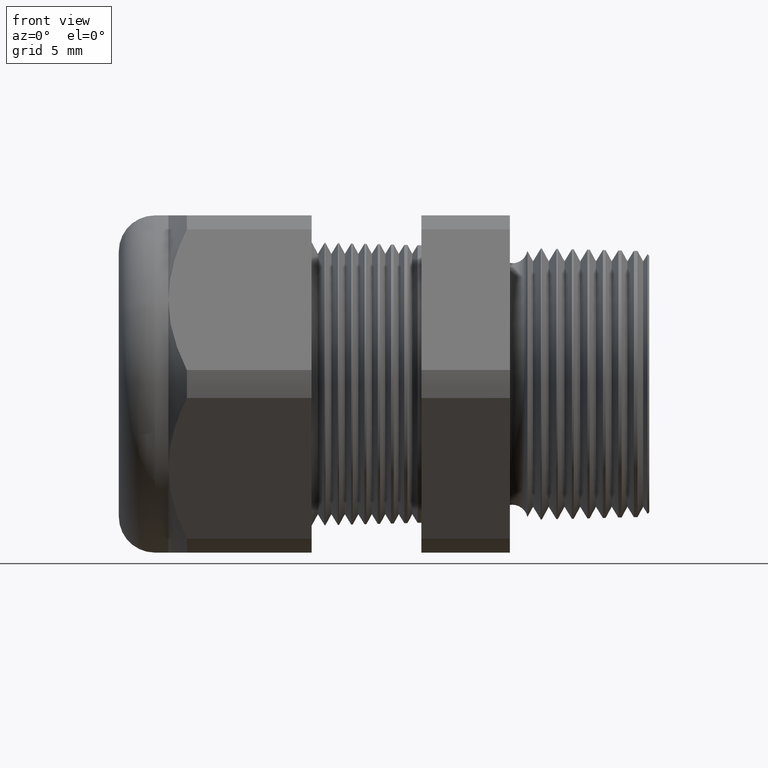
[diagram: clean part render]
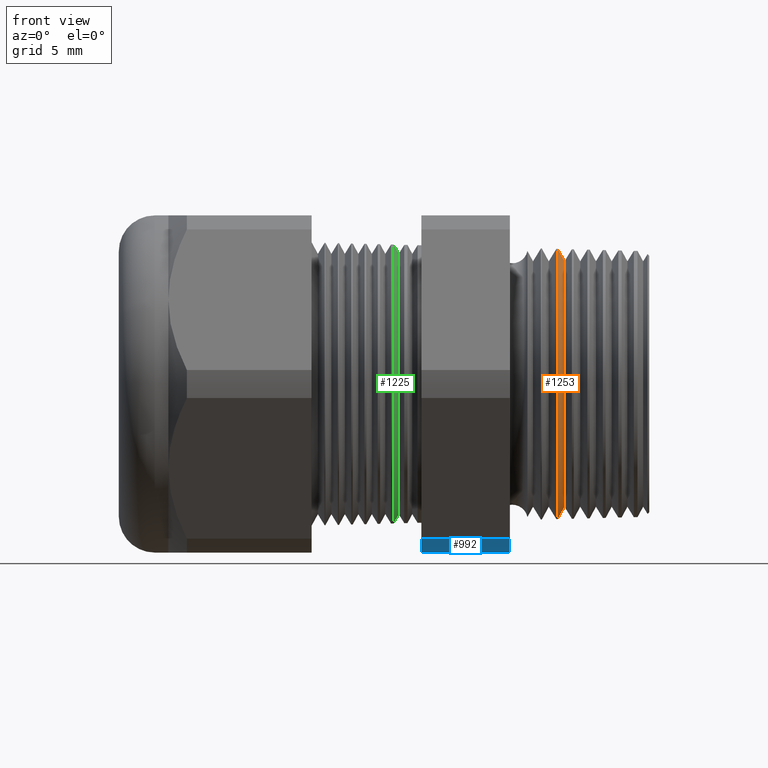
[diagram: same view with three faces highlighted in distinct colors, each labeled with its STEP entity id]
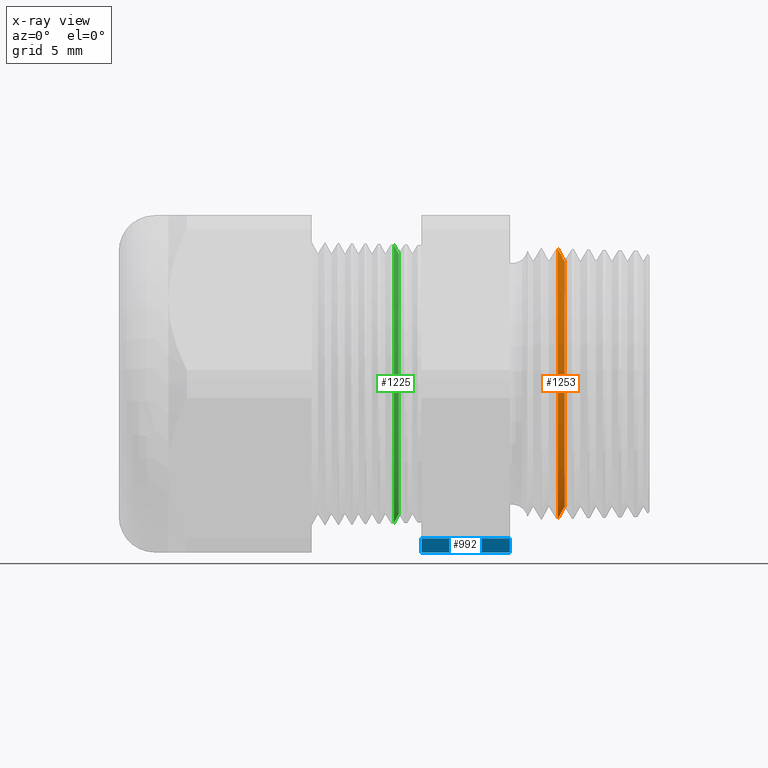
[diagram: x-ray of the same camera — body ghosted, the three highlighted faces saturated]
A machine part, front view with three faces highlighted in distinct colors.
The next image is the same camera in x-ray (body ghosted, the three faces saturated) — at least one of them is partly hidden behind the body in this view.
Their STEP definitions:

[orange] entity #1253 — the highlighted conical surface has half-angle 61.5 deg.
#361 = EDGE_CURVE ( 'NONE', #1365, #1362, #2184, .T. ) ;
#1232 = ORIENTED_EDGE ( 'NONE', *, *, #1233, .F. ) ;
#1233 = EDGE_CURVE ( 'NONE', #1310, #1375, #3644, .T. ) ;
#1234 = ORIENTED_EDGE ( 'NONE', *, *, #1367, .T. ) ;
#1235 = ORIENTED_EDGE ( 'NONE', *, *, #361, .T. ) ;
#1253 = ADVANCED_FACE ( 'NONE', ( #3752 ), #3747, .T. ) ;
#1254 = EDGE_LOOP ( 'NONE', ( #1255, #1232, #1234, #1235 ) ) ;
#1255 = ORIENTED_EDGE ( 'NONE', *, *, #1361, .F. ) ;
#1310 = VERTEX_POINT ( 'NONE', #3861 ) ;
#1361 = EDGE_CURVE ( 'NONE', #1375, #1362, #3914, .T. ) ;
#1362 = VERTEX_POINT ( 'NONE', #3905 ) ;
#1365 = VERTEX_POINT ( 'NONE', #3899 ) ;
#1367 = EDGE_CURVE ( 'NONE', #1310, #1365, #3898, .T. ) ;
#1375 = VERTEX_POINT ( 'NONE', #3942 ) ;
#2180 = DIRECTION ( 'NONE',  ( 0.0000000000000000000, 0.0000000000000000000, 1.000000000000000000 ) ) ;
#2181 = DIRECTION ( 'NONE',  ( 1.000000000000000000, 0.0000000000000000000, 0.0000000000000000000 ) ) ;
#2182 = CARTESIAN_POINT ( 'NONE',  ( -0.2034856000580643200, 0.0000000000000000000, 0.0000000000000000000 ) ) ;
#2183 = AXIS2_PLACEMENT_3D ( 'NONE', #2182, #2181, #2180 ) ;
#2184 = CIRCLE ( 'NONE', #2183, 0.3006663360672237100 ) ;
#2889 = DIRECTION ( 'NONE',  ( 1.000000000000000000, 0.0000000000000000000, 0.0000000000000000000 ) ) ;
#3127 = DIRECTION ( 'NONE',  ( 0.0000000000000000000, 0.0000000000000000000, -1.000000000000000000 ) ) ;
#3643 = AXIS2_PLACEMENT_3D ( 'NONE', #3648, #2889, #3127 ) ;
#3644 = CIRCLE ( 'NONE', #3643, 0.2730123959962614800 ) ;
#3648 = CARTESIAN_POINT ( 'NONE',  ( -0.1884707356790751900, 0.0000000000000000000, 0.0000000000000000000 ) ) ;
#3742 = DIRECTION ( 'NONE',  ( 0.0000000000000000000, 0.0000000000000000000, 1.000000000000000000 ) ) ;
#3743 = DIRECTION ( 'NONE',  ( -1.000000000000000000, 0.0000000000000000000, 0.0000000000000000000 ) ) ;
#3744 = CARTESIAN_POINT ( 'NONE',  ( -0.2049999999999999600, 0.0000000000000000000, 0.0000000000000000000 ) ) ;
#3745 = AXIS2_PLACEMENT_3D ( 'NONE', #3744, #3743, #3742 ) ;
#3747 = CONICAL_SURFACE ( 'NONE', #3745, 0.3034555137900915000, 1.073377489976501000 ) ;
#3752 = FACE_OUTER_BOUND ( 'NONE', #1254, .T. ) ;
#3861 = CARTESIAN_POINT ( 'NONE',  ( -0.1884707356790751900, 0.0000000000000000000, 0.2730123959962614800 ) ) ;
#3898 = LINE ( 'NONE', #3959, #3958 ) ;
#3899 = CARTESIAN_POINT ( 'NONE',  ( -0.2034856000580643200, 0.0000000000000000000, 0.3006663360672237100 ) ) ;
#3905 = CARTESIAN_POINT ( 'NONE',  ( -0.2034856000580643200, 3.682580211089470000E-017, -0.3006663360672237100 ) ) ;
#3906 = DIRECTION ( 'NONE',  ( -0.4771587602596187900, 1.076240564057388000E-016, -0.8788171126619597200 ) ) ;
#3907 = VECTOR ( 'NONE', #3906, 39.37007874015748900 ) ;
#3908 = CARTESIAN_POINT ( 'NONE',  ( -0.2049999999999999600, 3.716258236466510600E-017, -0.3034555137900915000 ) ) ;
#3914 = LINE ( 'NONE', #3908, #3907 ) ;
#3942 = CARTESIAN_POINT ( 'NONE',  ( -0.1884707356790751900, 3.512769114802295800E-017, -0.2730123959962614800 ) ) ;
#3957 = DIRECTION ( 'NONE',  ( -0.4771587602596187900, 0.0000000000000000000, 0.8788171126619597200 ) ) ;
#3958 = VECTOR ( 'NONE', #3957, 39.37007874015748900 ) ;
#3959 = CARTESIAN_POINT ( 'NONE',  ( -0.2049999999999999600, 0.0000000000000000000, 0.3034555137900915000 ) ) ;

[blue] entity #992 — the highlighted cylindrical surface (partial cylindrical patch) has radius 10.5727 mm, axis along (-1, 0, 0).
#847 = VERTEX_POINT ( 'NONE', #3114 ) ;
#849 = EDGE_CURVE ( 'NONE', #847, #850, #3113, .T. ) ;
#850 = VERTEX_POINT ( 'NONE', #3108 ) ;
#918 = EDGE_CURVE ( 'NONE', #847, #919, #3239, .T. ) ;
#919 = VERTEX_POINT ( 'NONE', #3235 ) ;
#920 = ORIENTED_EDGE ( 'NONE', *, *, #921, .F. ) ;
#921 = EDGE_CURVE ( 'NONE', #937, #919, #3234, .T. ) ;
#936 = EDGE_CURVE ( 'NONE', #850, #937, #3268, .T. ) ;
#937 = VERTEX_POINT ( 'NONE', #3264 ) ;
#992 = ADVANCED_FACE ( 'NONE', ( #3368 ), #3367, .T. ) ;
#993 = EDGE_LOOP ( 'NONE', ( #994, #995, #996, #920 ) ) ;
#994 = ORIENTED_EDGE ( 'NONE', *, *, #936, .F. ) ;
#995 = ORIENTED_EDGE ( 'NONE', *, *, #849, .F. ) ;
#996 = ORIENTED_EDGE ( 'NONE', *, *, #918, .T. ) ;
#3108 = CARTESIAN_POINT ( 'NONE',  ( -0.3100000000000000000, -0.1806628420566883900, -0.3750000000000001100 ) ) ;
#3109 = DIRECTION ( 'NONE',  ( 0.0000000000000000000, 0.0000000000000000000, -1.000000000000000000 ) ) ;
#3110 = DIRECTION ( 'NONE',  ( 1.000000000000000000, 0.0000000000000000000, 0.0000000000000000000 ) ) ;
#3111 = CARTESIAN_POINT ( 'NONE',  ( -0.3100000000000000000, 0.0000000000000000000, 0.0000000000000000000 ) ) ;
#3112 = AXIS2_PLACEMENT_3D ( 'NONE', #3111, #3110, #3109 ) ;
#3113 = CIRCLE ( 'NONE', #3112, 0.4162500000000000100 ) ;
#3114 = CARTESIAN_POINT ( 'NONE',  ( -0.3100000000000000000, -0.2344281053908202100, -0.3439586107409880500 ) ) ;
#3230 = DIRECTION ( 'NONE',  ( 0.0000000000000000000, 0.0000000000000000000, 1.000000000000000000 ) ) ;
#3231 = DIRECTION ( 'NONE',  ( -1.000000000000000000, 0.0000000000000000000, 0.0000000000000000000 ) ) ;
#3232 = CARTESIAN_POINT ( 'NONE',  ( -0.5068503937007874400, 0.0000000000000000000, 0.0000000000000000000 ) ) ;
#3233 = AXIS2_PLACEMENT_3D ( 'NONE', #3232, #3231, #3230 ) ;
#3234 = CIRCLE ( 'NONE', #3233, 0.4162500000000000100 ) ;
#3235 = CARTESIAN_POINT ( 'NONE',  ( -0.5068503937007874400, -0.2344281053908202100, -0.3439586107409880500 ) ) ;
#3236 = DIRECTION ( 'NONE',  ( -1.000000000000000000, 0.0000000000000000000, 0.0000000000000000000 ) ) ;
#3237 = VECTOR ( 'NONE', #3236, 39.37007874015748100 ) ;
#3238 = CARTESIAN_POINT ( 'NONE',  ( 0.0000000000000000000, -0.2344281053908202100, -0.3439586107409880500 ) ) ;
#3239 = LINE ( 'NONE', #3238, #3237 ) ;
#3264 = CARTESIAN_POINT ( 'NONE',  ( -0.5068503937007874400, -0.1806628420566883900, -0.3750000000000001100 ) ) ;
#3265 = DIRECTION ( 'NONE',  ( -1.000000000000000000, 0.0000000000000000000, 0.0000000000000000000 ) ) ;
#3266 = VECTOR ( 'NONE', #3265, 39.37007874015748100 ) ;
#3267 = CARTESIAN_POINT ( 'NONE',  ( 0.0000000000000000000, -0.1806628420566883900, -0.3750000000000001100 ) ) ;
#3268 = LINE ( 'NONE', #3267, #3266 ) ;
#3362 = DIRECTION ( 'NONE',  ( 0.0000000000000000000, 0.0000000000000000000, 1.000000000000000000 ) ) ;
#3363 = DIRECTION ( 'NONE',  ( -1.000000000000000000, 0.0000000000000000000, 0.0000000000000000000 ) ) ;
#3364 = CARTESIAN_POINT ( 'NONE',  ( 0.0000000000000000000, 0.0000000000000000000, 0.0000000000000000000 ) ) ;
#3365 = AXIS2_PLACEMENT_3D ( 'NONE', #3364, #3363, #3362 ) ;
#3367 = CYLINDRICAL_SURFACE ( 'NONE', #3365, 0.4162500000000000100 ) ;
#3368 = FACE_OUTER_BOUND ( 'NONE', #993, .T. ) ;

[green] entity #1225 — the highlighted conical surface has half-angle 61.5 deg.
#161 = VERTEX_POINT ( 'NONE', #1769 ) ;
#162 = VERTEX_POINT ( 'NONE', #1768 ) ;
#388 = EDGE_CURVE ( 'NONE', #717, #714, #2191, .T. ) ;
#713 = EDGE_CURVE ( 'NONE', #162, #714, #2807, .T. ) ;
#714 = VERTEX_POINT ( 'NONE', #2803 ) ;
#717 = VERTEX_POINT ( 'NONE', #2797 ) ;
#748 = EDGE_CURVE ( 'NONE', #161, #717, #2862, .T. ) ;
#1153 = EDGE_CURVE ( 'NONE', #161, #162, #3558, .T. ) ;
#1154 = ORIENTED_EDGE ( 'NONE', *, *, #748, .T. ) ;
#1155 = ORIENTED_EDGE ( 'NONE', *, *, #388, .T. ) ;
#1225 = ADVANCED_FACE ( 'NONE', ( #3661 ), #3656, .T. ) ;
#1226 = EDGE_LOOP ( 'NONE', ( #1227, #1228, #1154, #1155 ) ) ;
#1227 = ORIENTED_EDGE ( 'NONE', *, *, #713, .F. ) ;
#1228 = ORIENTED_EDGE ( 'NONE', *, *, #1153, .F. ) ;
#1768 = CARTESIAN_POINT ( 'NONE',  ( -0.5570917547981794100, 3.673017550437932200E-017, -0.2896307351718083200 ) ) ;
#1769 = CARTESIAN_POINT ( 'NONE',  ( -0.5570917547981794100, 0.0000000000000000000, 0.2896307351718083200 ) ) ;
#2190 = AXIS2_PLACEMENT_3D ( 'NONE', #2253, #2252, #2251 ) ;
#2191 = CIRCLE ( 'NONE', #2190, 0.3102185524750837900 ) ;
#2251 = DIRECTION ( 'NONE',  ( 0.0000000000000000000, 0.0000000000000000000, 1.000000000000000000 ) ) ;
#2252 = DIRECTION ( 'NONE',  ( 1.000000000000000000, 0.0000000000000000000, 0.0000000000000000000 ) ) ;
#2253 = CARTESIAN_POINT ( 'NONE',  ( -0.5682700275461080000, 0.0000000000000000000, 0.0000000000000000000 ) ) ;
#2797 = CARTESIAN_POINT ( 'NONE',  ( -0.5682700275461080000, 0.0000000000000000000, 0.3102185524750837900 ) ) ;
#2803 = CARTESIAN_POINT ( 'NONE',  ( -0.5682700275461080000, 3.800060863805230800E-017, -0.3102185524750837900 ) ) ;
#2804 = DIRECTION ( 'NONE',  ( -0.4771587602596195100, 1.076240564057387400E-016, -0.8788171126619593900 ) ) ;
#2805 = VECTOR ( 'NONE', #2804, 39.37007874015748100 ) ;
#2806 = CARTESIAN_POINT ( 'NONE',  ( -0.5708661417322834500, 3.857637417314162700E-017, -0.3150000000000000000 ) ) ;
#2807 = LINE ( 'NONE', #2806, #2805 ) ;
#2859 = DIRECTION ( 'NONE',  ( -0.4771587602596195100, 0.0000000000000000000, 0.8788171126619593900 ) ) ;
#2860 = VECTOR ( 'NONE', #2859, 39.37007874015748100 ) ;
#2861 = CARTESIAN_POINT ( 'NONE',  ( -0.5708661417322834500, 0.0000000000000000000, 0.3150000000000000000 ) ) ;
#2862 = LINE ( 'NONE', #2861, #2860 ) ;
#3550 = DIRECTION ( 'NONE',  ( 0.0000000000000000000, 0.0000000000000000000, -1.000000000000000000 ) ) ;
#3551 = DIRECTION ( 'NONE',  ( 1.000000000000000000, 0.0000000000000000000, 0.0000000000000000000 ) ) ;
#3552 = CARTESIAN_POINT ( 'NONE',  ( -0.5570917547981794100, 0.0000000000000000000, 0.0000000000000000000 ) ) ;
#3553 = AXIS2_PLACEMENT_3D ( 'NONE', #3552, #3551, #3550 ) ;
#3558 = CIRCLE ( 'NONE', #3553, 0.2896307351718083200 ) ;
#3651 = DIRECTION ( 'NONE',  ( 0.0000000000000000000, 0.0000000000000000000, 1.000000000000000000 ) ) ;
#3652 = DIRECTION ( 'NONE',  ( -1.000000000000000000, 0.0000000000000000000, 0.0000000000000000000 ) ) ;
#3653 = CARTESIAN_POINT ( 'NONE',  ( -0.5708661417322834500, 0.0000000000000000000, 0.0000000000000000000 ) ) ;
#3654 = AXIS2_PLACEMENT_3D ( 'NONE', #3653, #3652, #3651 ) ;
#3656 = CONICAL_SURFACE ( 'NONE', #3654, 0.3150000000000000000, 1.073377489976500100 ) ;
#3661 = FACE_OUTER_BOUND ( 'NONE', #1226, .T. ) ;